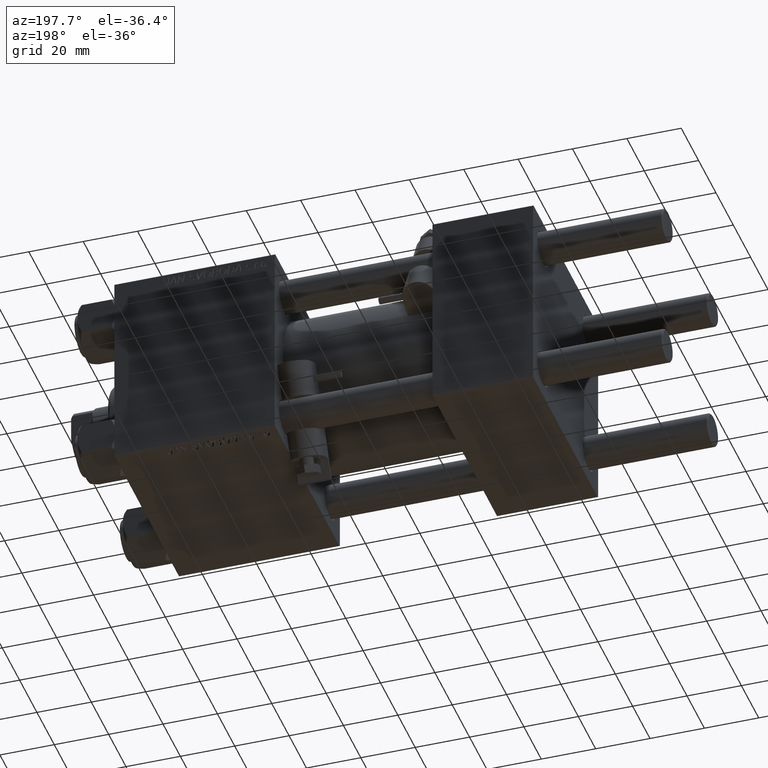
[diagram: clean part render]
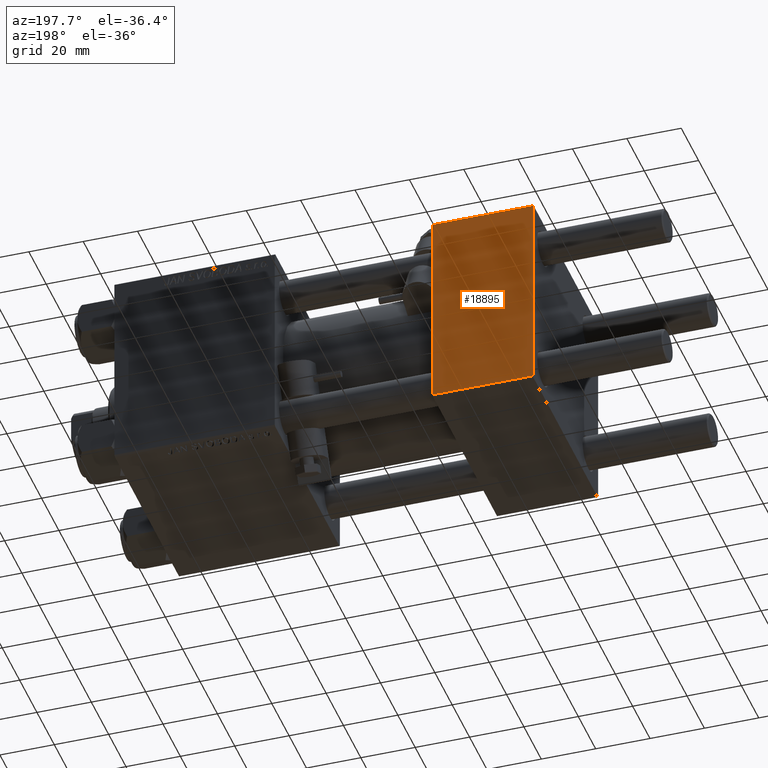
[diagram: same view with one face highlighted and labeled with its STEP entity id]
A machine part, auxiliary view. The second image highlights one B-rep face of the part: STEP entity #18895.
In plain terms, the highlighted planar face has unit normal (0, 1, 0).
Its self-contained STEP definition (entity closure, byte-faithful):
#684 = DIRECTION ( 'NONE',  ( 0.000000000000000000, 0.000000000000000000, -1.000000000000000000 ) ) ;
#983 = EDGE_CURVE ( 'NONE', #32526, #17684, #47282, .T. ) ;
#1306 = DIRECTION ( 'NONE',  ( -1.000000000000000000, 0.000000000000000000, 0.000000000000000000 ) ) ;
#5163 = LINE ( 'NONE', #20826, #50198 ) ;
#5846 = EDGE_CURVE ( 'NONE', #32526, #28720, #12617, .T. ) ;
#8396 = CARTESIAN_POINT ( 'NONE',  ( 37.00000000000000000, 37.49999999999999289, 37.50000000000000000 ) ) ;
#9454 = EDGE_CURVE ( 'NONE', #17684, #19397, #44596, .T. ) ;
#9600 = EDGE_LOOP ( 'NONE', ( #30205, #21063, #33858, #25159 ) ) ;
#11083 = CARTESIAN_POINT ( 'NONE',  ( 37.00000000000000000, 37.49999999999999289, 37.50000000000000000 ) ) ;
#12617 = LINE ( 'NONE', #39333, #20380 ) ;
#13128 = CARTESIAN_POINT ( 'NONE',  ( 0.000000000000000000, 37.49999999999999289, -36.99999999999998579 ) ) ;
#14641 = VECTOR ( 'NONE', #35448, 1000.000000000000000 ) ;
#15440 = DIRECTION ( 'NONE',  ( -0.000000000000000000, 1.000000000000000000, 0.000000000000000000 ) ) ;
#16194 = CARTESIAN_POINT ( 'NONE',  ( 37.00000000000000000, 37.49999999999999289, 37.00000000000000000 ) ) ;
#17684 = VERTEX_POINT ( 'NONE', #47460 ) ;
#18895 = ADVANCED_FACE ( 'NONE', ( #30341 ), #23145, .T. ) ;
#19397 = VERTEX_POINT ( 'NONE', #42799 ) ;
#20380 = VECTOR ( 'NONE', #43447, 1000.000000000000000 ) ;
#20826 = CARTESIAN_POINT ( 'NONE',  ( 37.00000000000000000, 37.49999999999999289, -36.99999999999998579 ) ) ;
#21063 = ORIENTED_EDGE ( 'NONE', *, *, #31773, .T. ) ;
#23145 = PLANE ( 'NONE',  #25604 ) ;
#25159 = ORIENTED_EDGE ( 'NONE', *, *, #983, .T. ) ;
#25604 = AXIS2_PLACEMENT_3D ( 'NONE', #11083, #15440, #26735 ) ;
#26735 = DIRECTION ( 'NONE',  ( 0.000000000000000000, -0.000000000000000000, 1.000000000000000000 ) ) ;
#28720 = VERTEX_POINT ( 'NONE', #13128 ) ;
#30205 = ORIENTED_EDGE ( 'NONE', *, *, #9454, .T. ) ;
#30341 = FACE_OUTER_BOUND ( 'NONE', #9600, .T. ) ;
#31773 = EDGE_CURVE ( 'NONE', #19397, #28720, #5163, .T. ) ;
#32526 = VERTEX_POINT ( 'NONE', #47652 ) ;
#33858 = ORIENTED_EDGE ( 'NONE', *, *, #5846, .F. ) ;
#35448 = DIRECTION ( 'NONE',  ( 1.000000000000000000, 0.000000000000000000, 0.000000000000000000 ) ) ;
#38529 = VECTOR ( 'NONE', #684, 1000.000000000000000 ) ;
#39333 = CARTESIAN_POINT ( 'NONE',  ( 0.000000000000000000, 37.49999999999999289, 37.50000000000000000 ) ) ;
#42799 = CARTESIAN_POINT ( 'NONE',  ( 37.00000000000000000, 37.49999999999999289, -36.99999999999998579 ) ) ;
#43447 = DIRECTION ( 'NONE',  ( 0.000000000000000000, 0.000000000000000000, -1.000000000000000000 ) ) ;
#44596 = LINE ( 'NONE', #8396, #38529 ) ;
#47282 = LINE ( 'NONE', #16194, #14641 ) ;
#47460 = CARTESIAN_POINT ( 'NONE',  ( 37.00000000000000000, 37.49999999999999289, 37.00000000000000000 ) ) ;
#47652 = CARTESIAN_POINT ( 'NONE',  ( 0.000000000000000000, 37.49999999999999289, 37.00000000000000000 ) ) ;
#50198 = VECTOR ( 'NONE', #1306, 1000.000000000000000 ) ;